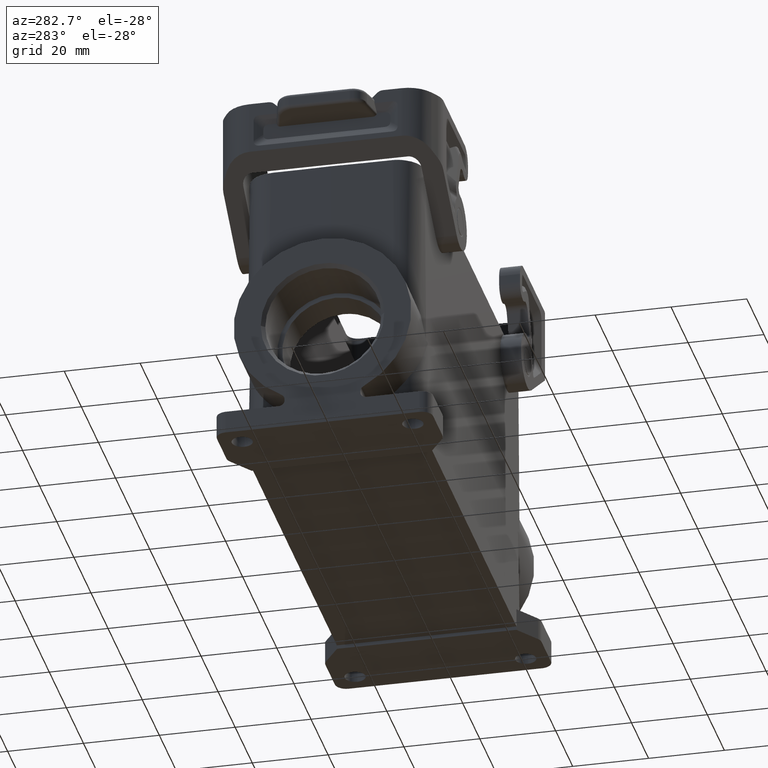
[diagram: clean part render]
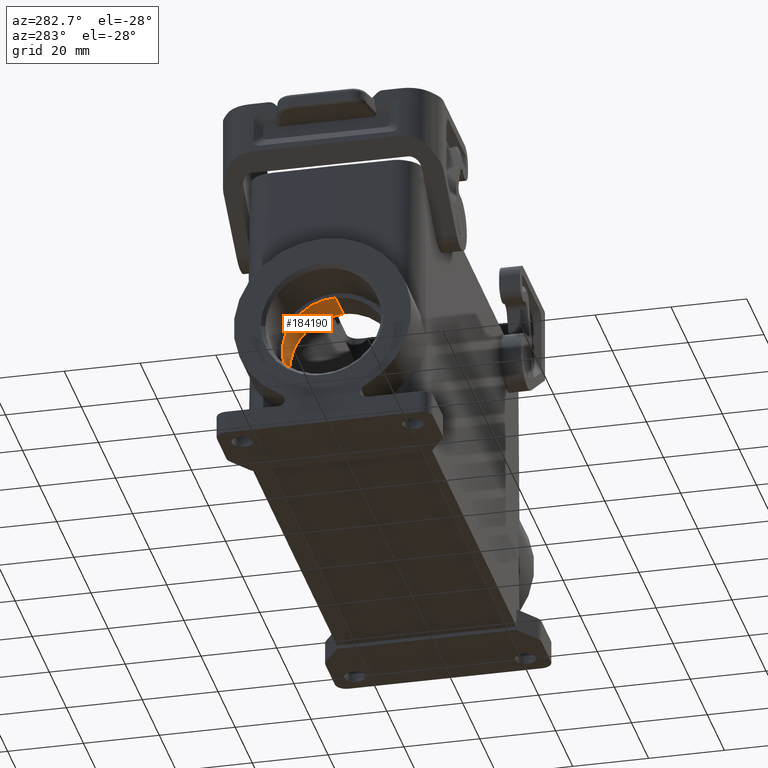
[diagram: same view with one face highlighted and labeled with its STEP entity id]
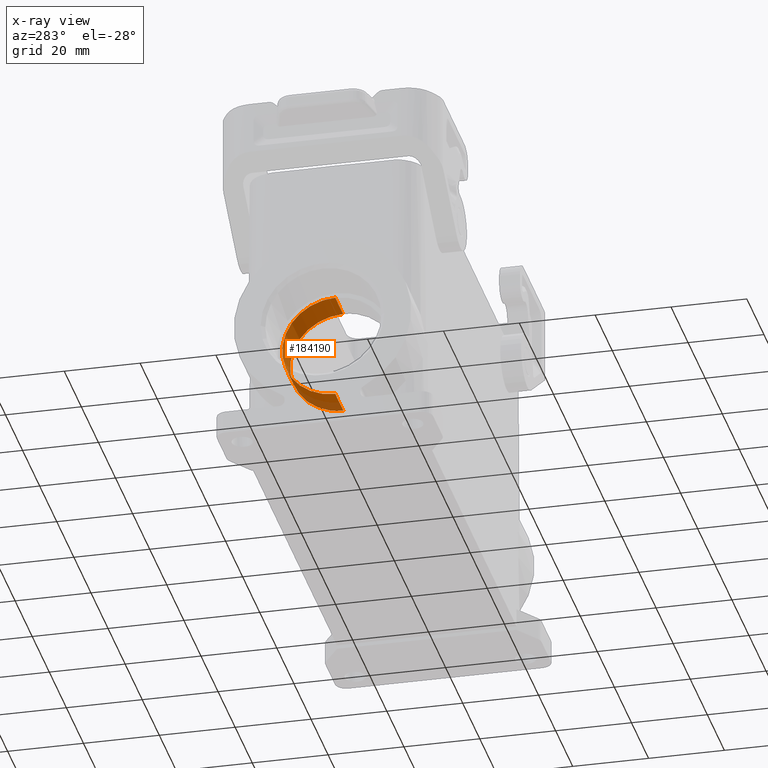
[diagram: x-ray of the same camera — body ghosted, the highlighted face saturated]
A machine part, auxiliary view. The second image highlights one B-rep face of the part: STEP entity #184190.
The next image is the same camera in x-ray: the body ghosted, the highlighted face saturated — about 17% of this face is hidden behind the body in this view.
In plain terms, the highlighted cylindrical surface (partial cylindrical patch) has radius 14 mm, axis along (-1, 0, 0).
Its self-contained STEP definition (entity closure, byte-faithful):
#16280=CARTESIAN_POINT('',(-73.9366971737214,-26.399607,
-2.8421709430404E-14));
#16290=DIRECTION('',(-0.999961923064171,-0.00872653549837406,
-6.42287263146656E-16));
#16300=DIRECTION('',(0.00872653549837406,-0.999961923064171,
-1.74644436139518E-14));
#16310=AXIS2_PLACEMENT_3D('',#16280,#16290,#16300);
#16320=ELLIPSE('',#16310,14.0005330974003,14.);
#16330=CARTESIAN_POINT('',(-73.8145210246508,-40.399607,
-3.08352781861551E-14));
#16340=VERTEX_POINT('',#16330);
#16350=CARTESIAN_POINT('',(-74.058873322792,-12.399607,
-3.26694818088746E-14));
#16360=VERTEX_POINT('',#16350);
#16390=EDGE_CURVE('',#16360,#16340,#16320,.T.);
#183880=CARTESIAN_POINT('',(-81.746502017561,-26.399607,
-3.47208282397012E-14));
#183890=DIRECTION('',(-1.,8.81604488316852E-47,-4.89858719658941E-16));
#183900=DIRECTION('',(-4.40802244158426E-47,-1.,-8.99855869597115E-32));
#183910=AXIS2_PLACEMENT_3D('',#183880,#183890,#183900);
#183920=CYLINDRICAL_SURFACE('',#183910,14.);
#183930=CARTESIAN_POINT('',(-81.746502017561,-40.399607,
-3.47208282397012E-14));
#183940=DIRECTION('',(-1.,8.81604488316852E-47,-4.89858719658941E-16));
#183950=VECTOR('',#183940,1.);
#183960=LINE('',#183930,#183950);
#183970=CARTESIAN_POINT('',(-83.246502017561,-40.399607,
-3.54556163191896E-14));
#183980=VERTEX_POINT('',#183970);
#183990=EDGE_CURVE('',#16340,#183980,#183960,.T.);
#184000=ORIENTED_EDGE('',*,*,#183990,.F.);
#184010=CARTESIAN_POINT('',(-83.246502017561,-26.399607,
-3.54556163191896E-14));
#184020=DIRECTION('',(1.,-8.81604488316852E-47,4.89858719658941E-16));
#184030=DIRECTION('',(-4.40802244158426E-47,-1.,-8.99855869597115E-32));
#184040=AXIS2_PLACEMENT_3D('',#184010,#184020,#184030);
#184050=CIRCLE('',#184040,14.);
#184060=CARTESIAN_POINT('',(-83.246502017561,-12.399607,
-3.71701218379959E-14));
#184070=VERTEX_POINT('',#184060);
#184080=EDGE_CURVE('',#183980,#184070,#184050,.T.);
#184090=ORIENTED_EDGE('',*,*,#184080,.F.);
#184100=CARTESIAN_POINT('',(-81.746502017561,-12.399607,
-3.64353337585075E-14));
#184110=DIRECTION('',(-1.,8.81604488316852E-47,-4.89858719658941E-16));
#184120=VECTOR('',#184110,1.);
#184130=LINE('',#184100,#184120);
#184140=EDGE_CURVE('',#16360,#184070,#184130,.T.);
#184150=ORIENTED_EDGE('',*,*,#184140,.T.);
#184160=ORIENTED_EDGE('',*,*,#16390,.F.);
#184170=EDGE_LOOP('',(#184160,#184150,#184090,#184000));
#184180=FACE_OUTER_BOUND('',#184170,.T.);
#184190=ADVANCED_FACE('',(#184180),#183920,.F.);